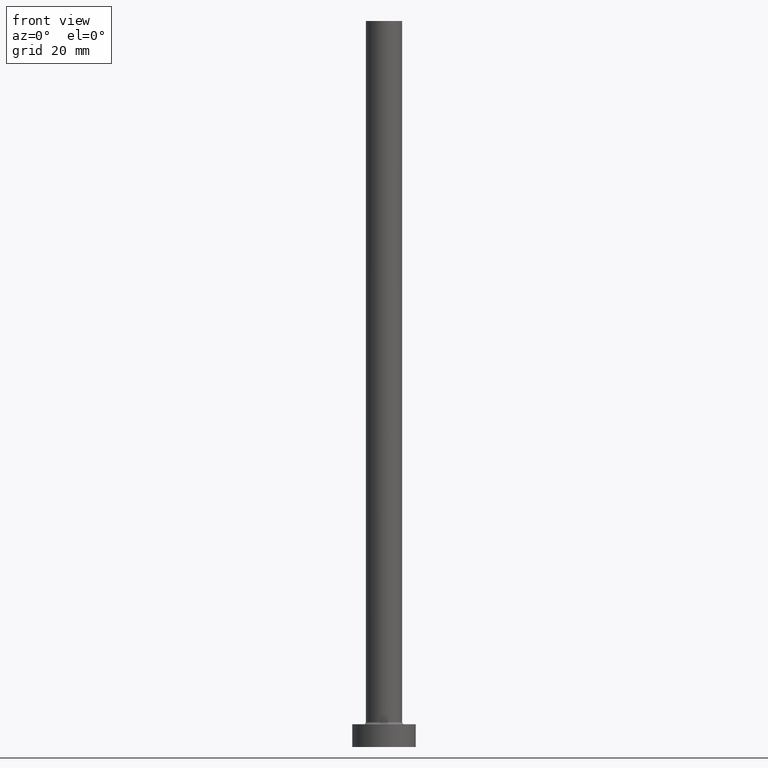
[diagram: clean part render]
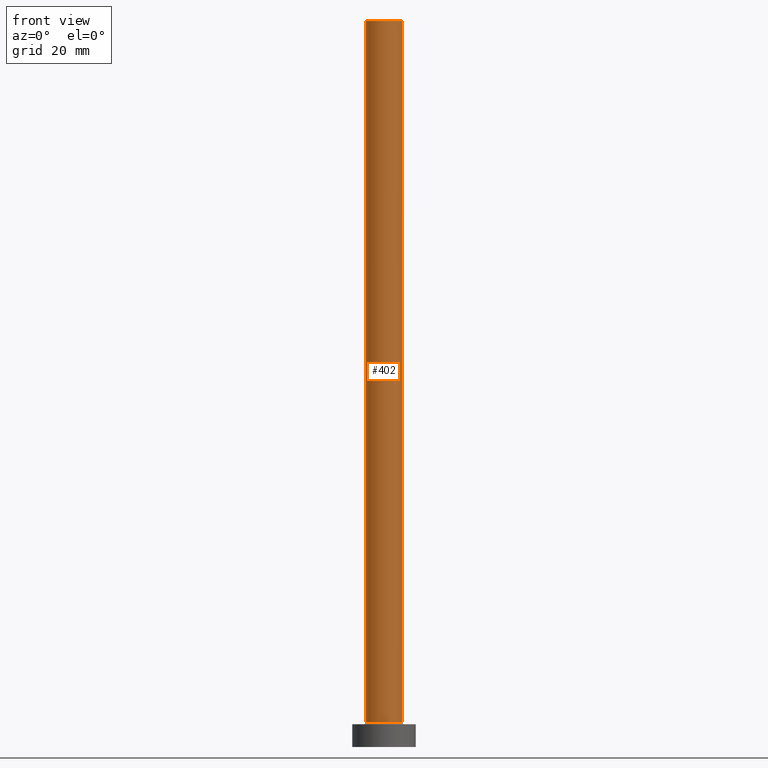
[diagram: same view with one face highlighted and labeled with its STEP entity id]
A machine part, front view. The second image highlights one B-rep face of the part: STEP entity #402.
In plain terms, the highlighted cylindrical surface (edge-blend (fillet) strip) has radius 4 mm, axis along (-0, -0, -1).
Its self-contained STEP definition (entity closure, byte-faithful):
#8 = VERTEX_POINT ( 'NONE', #326 ) ;
#11 = AXIS2_PLACEMENT_3D ( 'NONE', #198, #375, #133 ) ;
#24 = CIRCLE ( 'NONE', #411, 4.000000000000000000 ) ;
#28 = VERTEX_POINT ( 'NONE', #108 ) ;
#55 = ORIENTED_EDGE ( 'NONE', *, *, #119, .F. ) ;
#70 = CIRCLE ( 'NONE', #178, 4.000000000000000000 ) ;
#91 = CARTESIAN_POINT ( 'NONE',  ( 4.000000000000000000, 4.898587196589412829E-16, 160.0000000000000000 ) ) ;
#94 = CYLINDRICAL_SURFACE ( 'NONE', #11, 4.000000000000000000 ) ;
#108 = CARTESIAN_POINT ( 'NONE',  ( -4.000000000000000000, 0.000000000000000000, 160.0000000000000000 ) ) ;
#119 = EDGE_CURVE ( 'NONE', #28, #247, #24, .T. ) ;
#133 = DIRECTION ( 'NONE',  ( -1.000000000000000000, 0.000000000000000000, 0.000000000000000000 ) ) ;
#142 = LINE ( 'NONE', #283, #321 ) ;
#164 = CARTESIAN_POINT ( 'NONE',  ( 4.000000000000000000, 4.898587196589412829E-16, 5.500000000000005329 ) ) ;
#175 = DIRECTION ( 'NONE',  ( 1.000000000000000000, 0.000000000000000000, 0.000000000000000000 ) ) ;
#178 = AXIS2_PLACEMENT_3D ( 'NONE', #240, #238, #354 ) ;
#185 = EDGE_CURVE ( 'NONE', #28, #8, #142, .T. ) ;
#198 = CARTESIAN_POINT ( 'NONE',  ( 0.000000000000000000, 0.000000000000000000, 160.0000000000000000 ) ) ;
#209 = DIRECTION ( 'NONE',  ( 0.000000000000000000, 0.000000000000000000, 1.000000000000000000 ) ) ;
#216 = ORIENTED_EDGE ( 'NONE', *, *, #185, .T. ) ;
#238 = DIRECTION ( 'NONE',  ( 0.000000000000000000, 0.000000000000000000, 1.000000000000000000 ) ) ;
#240 = CARTESIAN_POINT ( 'NONE',  ( 0.000000000000000000, 0.000000000000000000, 5.500000000000005329 ) ) ;
#247 = VERTEX_POINT ( 'NONE', #398 ) ;
#270 = DIRECTION ( 'NONE',  ( -0.000000000000000000, -0.000000000000000000, -1.000000000000000000 ) ) ;
#271 = EDGE_LOOP ( 'NONE', ( #349, #55, #216, #278 ) ) ;
#278 = ORIENTED_EDGE ( 'NONE', *, *, #449, .T. ) ;
#283 = CARTESIAN_POINT ( 'NONE',  ( -4.000000000000000000, 0.000000000000000000, 160.0000000000000000 ) ) ;
#314 = VERTEX_POINT ( 'NONE', #164 ) ;
#321 = VECTOR ( 'NONE', #424, 1000.000000000000000 ) ;
#326 = CARTESIAN_POINT ( 'NONE',  ( -4.000000000000000000, 0.000000000000000000, 5.500000000000005329 ) ) ;
#349 = ORIENTED_EDGE ( 'NONE', *, *, #415, .F. ) ;
#354 = DIRECTION ( 'NONE',  ( 1.000000000000000000, 0.000000000000000000, 0.000000000000000000 ) ) ;
#375 = DIRECTION ( 'NONE',  ( -0.000000000000000000, -0.000000000000000000, -1.000000000000000000 ) ) ;
#398 = CARTESIAN_POINT ( 'NONE',  ( 4.000000000000000000, 4.898587196589412829E-16, 160.0000000000000000 ) ) ;
#402 = ADVANCED_FACE ( 'NONE', ( #447 ), #94, .T. ) ;
#404 = LINE ( 'NONE', #91, #456 ) ;
#411 = AXIS2_PLACEMENT_3D ( 'NONE', #422, #209, #175 ) ;
#415 = EDGE_CURVE ( 'NONE', #247, #314, #404, .T. ) ;
#422 = CARTESIAN_POINT ( 'NONE',  ( 0.000000000000000000, 0.000000000000000000, 160.0000000000000000 ) ) ;
#424 = DIRECTION ( 'NONE',  ( -0.000000000000000000, -0.000000000000000000, -1.000000000000000000 ) ) ;
#447 = FACE_OUTER_BOUND ( 'NONE', #271, .T. ) ;
#449 = EDGE_CURVE ( 'NONE', #8, #314, #70, .T. ) ;
#456 = VECTOR ( 'NONE', #270, 1000.000000000000000 ) ;